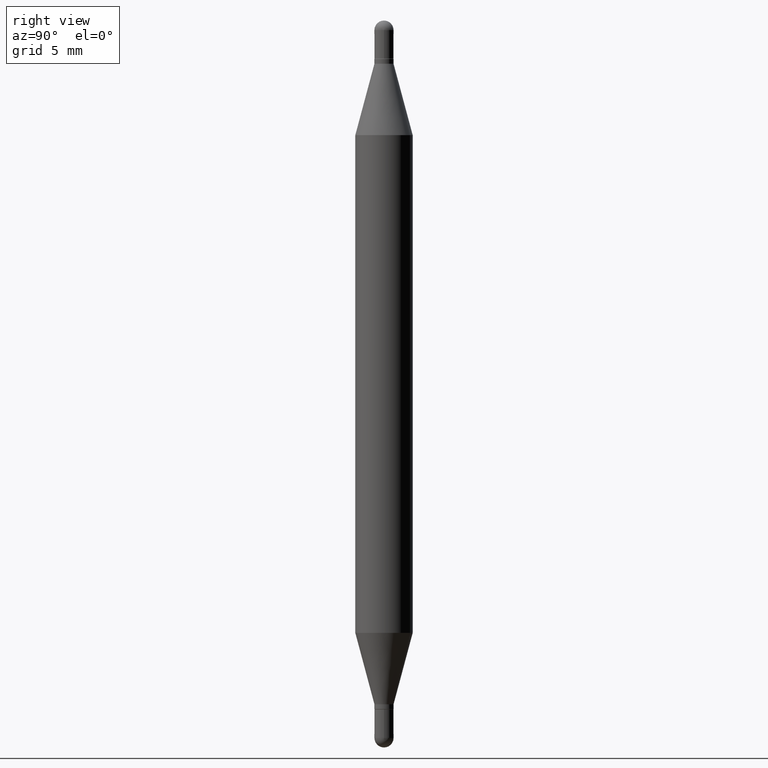
[diagram: clean part render]
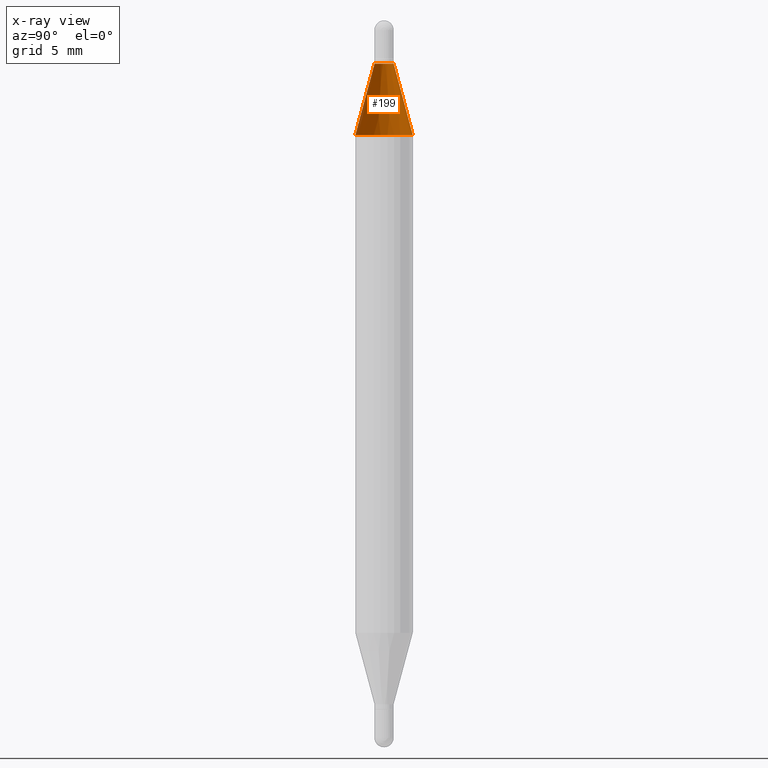
[diagram: x-ray — body ghosted, one internal face saturated and labeled with its STEP entity id]
A machine part, right view, then the same camera in x-ray: the body is ghosted and one INTERNAL B-rep face — a face not visible from any outside direction — is saturated and labeled: STEP entity #199.
In plain terms, the highlighted conical surface has half-angle 15 deg.
Its self-contained STEP definition (entity closure, byte-faithful):
#35 = CARTESIAN_POINT ( 'NONE',  ( 4.051124067684398803E-16, 0.05904999999999917953, -0.2358561992778360206 ) ) ;
#45 = AXIS2_PLACEMENT_3D ( 'NONE', #219, #890, #469 ) ;
#108 = LINE ( 'NONE', #426, #1052 ) ;
#126 = VERTEX_POINT ( 'NONE', #35 ) ;
#199 = ADVANCED_FACE ( 'NONE', ( #963 ), #202, .T. ) ;
#202 = CONICAL_SURFACE ( 'NONE', #341, 0.01969999999999974549, 0.2617993877991502960 ) ;
#216 = ORIENTED_EDGE ( 'NONE', *, *, #282, .F. ) ;
#219 = CARTESIAN_POINT ( 'NONE',  ( 3.090661948624037332E-29, -8.169992916454894911E-16, -0.2358561992778358263 ) ) ;
#244 = CIRCLE ( 'NONE', #1068, 0.01969999999999974549 ) ;
#282 = EDGE_CURVE ( 'NONE', #474, #416, #244, .T. ) ;
#288 = ORIENTED_EDGE ( 'NONE', *, *, #499, .T. ) ;
#305 = DIRECTION ( 'NONE',  ( -6.982962677686265922E-15, -1.000000000000000000, 3.466812174700886453E-15 ) ) ;
#310 = CARTESIAN_POINT ( 'NONE',  ( 3.450816758961104707E-29, -3.045319776689201457E-16, -0.08900000000000006517 ) ) ;
#313 = EDGE_CURVE ( 'NONE', #126, #1058, #689, .T. ) ;
#341 = AXIS2_PLACEMENT_3D ( 'NONE', #860, #783, #853 ) ;
#366 = EDGE_LOOP ( 'NONE', ( #216, #288, #1064, #542 ) ) ;
#416 = VERTEX_POINT ( 'NONE', #717 ) ;
#426 = CARTESIAN_POINT ( 'NONE',  ( -1.375643647503831486E-16, -0.01970000000000004733, -0.08899999999999999578 ) ) ;
#469 = DIRECTION ( 'NONE',  ( -6.982962677686265922E-15, -1.000000000000000000, 3.469747663417777002E-15 ) ) ;
#474 = VERTEX_POINT ( 'NONE', #923 ) ;
#499 = EDGE_CURVE ( 'NONE', #474, #126, #642, .T. ) ;
#518 = VECTOR ( 'NONE', #816, 39.37007874015748143 ) ;
#542 = ORIENTED_EDGE ( 'NONE', *, *, #1104, .F. ) ;
#571 = CARTESIAN_POINT ( 'NONE',  ( 1.351518105561319317E-16, 0.01969999999999944365, -0.08900000000000013456 ) ) ;
#642 = LINE ( 'NONE', #571, #518 ) ;
#689 = CIRCLE ( 'NONE', #45, 0.05905000000000000526 ) ;
#717 = CARTESIAN_POINT ( 'NONE',  ( -1.375643647503831486E-16, -0.01970000000000004733, -0.08899999999999999578 ) ) ;
#725 = DIRECTION ( 'NONE',  ( 2.452431780940306437E-29, 3.489585843135142611E-15, 1.000000000000000000 ) ) ;
#761 = DIRECTION ( 'NONE',  ( -1.807323732225330534E-15, -0.2588190451025250138, -0.9659258262890670910 ) ) ;
#768 = CARTESIAN_POINT ( 'NONE',  ( -4.123439461173430699E-16, -0.05905000000000081711, -0.2358561992778356042 ) ) ;
#783 = DIRECTION ( 'NONE',  ( -2.452431780940306437E-29, -3.489585843135142611E-15, -1.000000000000000000 ) ) ;
#816 = DIRECTION ( 'NONE',  ( 1.775627540710965497E-15, 0.2588190451025182415, -0.9659258262890689783 ) ) ;
#853 = DIRECTION ( 'NONE',  ( -6.982962677686265922E-15, -1.000000000000000000, 3.466812174700886453E-15 ) ) ;
#860 = CARTESIAN_POINT ( 'NONE',  ( 3.450816758961104707E-29, -3.045319776689201457E-16, -0.08900000000000006517 ) ) ;
#890 = DIRECTION ( 'NONE',  ( 2.452431780940306437E-29, 3.489585843135142611E-15, 1.000000000000000000 ) ) ;
#923 = CARTESIAN_POINT ( 'NONE',  ( 1.351518105561320303E-16, 0.01969999999999944365, -0.08900000000000013456 ) ) ;
#963 = FACE_OUTER_BOUND ( 'NONE', #366, .T. ) ;
#1052 = VECTOR ( 'NONE', #761, 39.37007874015748143 ) ;
#1058 = VERTEX_POINT ( 'NONE', #768 ) ;
#1064 = ORIENTED_EDGE ( 'NONE', *, *, #313, .T. ) ;
#1068 = AXIS2_PLACEMENT_3D ( 'NONE', #310, #725, #305 ) ;
#1104 = EDGE_CURVE ( 'NONE', #416, #1058, #108, .T. ) ;